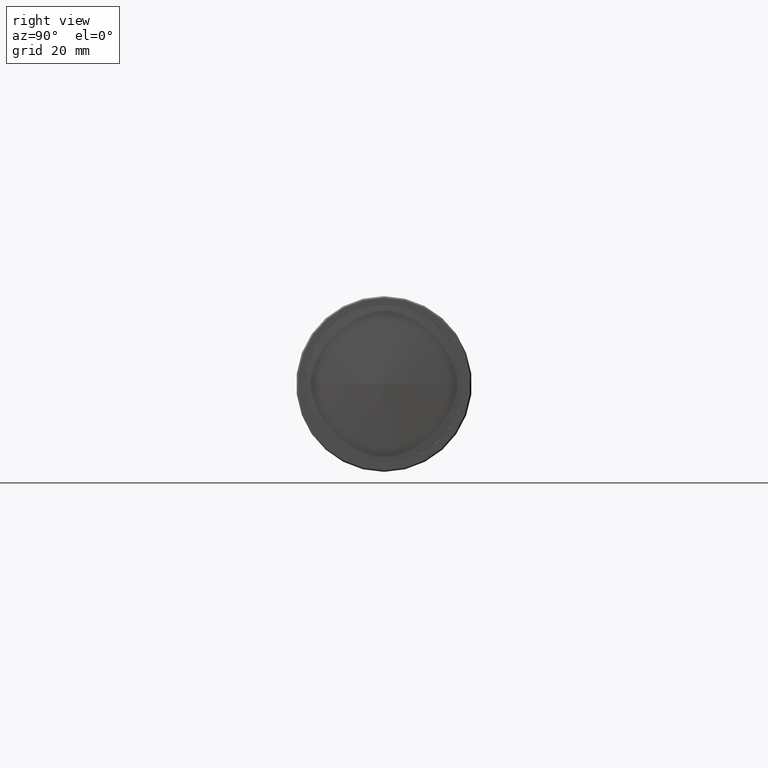
[diagram: clean part render]
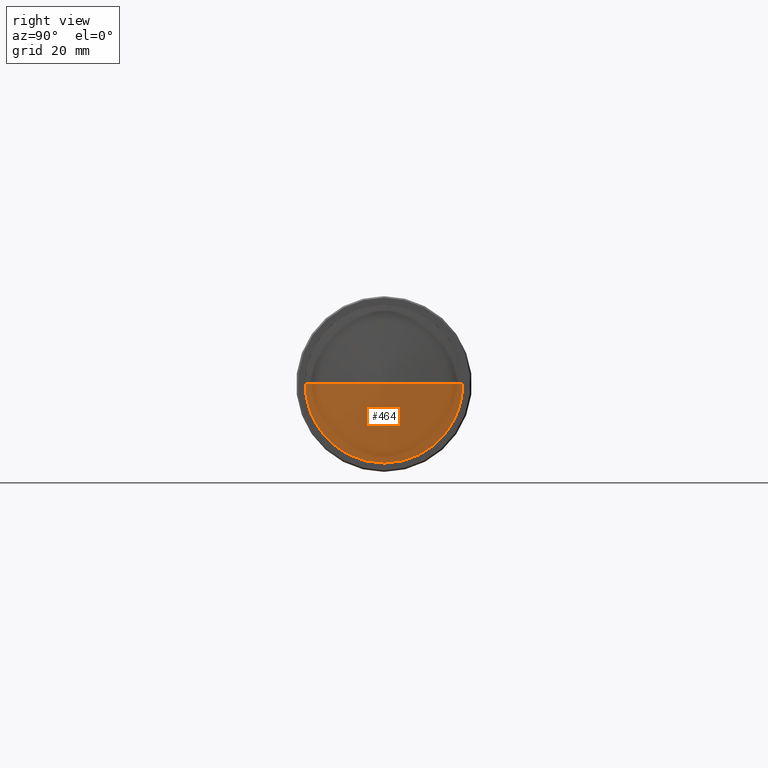
[diagram: same view with one face highlighted and labeled with its STEP entity id]
A machine part, right view. The second image highlights one B-rep face of the part: STEP entity #464.
In plain terms, the highlighted conical surface has half-angle 87.146 deg.
Its self-contained STEP definition (entity closure, byte-faithful):
#59 = EDGE_CURVE ( 'NONE', #1434, #1359, #251, .T. ) ;
#171 = CONICAL_SURFACE ( 'NONE', #325, 20062.49999928364600, 1.520993307079872200 ) ;
#189 = FACE_OUTER_BOUND ( 'NONE', #1364, .T. ) ;
#210 = VECTOR ( 'NONE', #946, 999.9999999999998900 ) ;
#211 = LINE ( 'NONE', #962, #210 ) ;
#228 = CIRCLE ( 'NONE', #343, 15.75000000000000000 ) ;
#237 = VECTOR ( 'NONE', #809, 1000.000000000000000 ) ;
#240 = LINE ( 'NONE', #807, #237 ) ;
#251 = CIRCLE ( 'NONE', #364, 15.75000000000000000 ) ;
#324 = EDGE_CURVE ( 'NONE', #1432, #1434, #240, .T. ) ;
#325 = AXIS2_PLACEMENT_3D ( 'NONE', #845, #583, #787 ) ;
#343 = AXIS2_PLACEMENT_3D ( 'NONE', #850, #837, #842 ) ;
#364 = AXIS2_PLACEMENT_3D ( 'NONE', #590, #591, #592 ) ;
#375 = EDGE_CURVE ( 'NONE', #1359, #1424, #228, .T. ) ;
#426 = EDGE_CURVE ( 'NONE', #1432, #1424, #211, .T. ) ;
#464 = ADVANCED_FACE ( 'NONE', ( #189 ), #171, .T. ) ;
#583 = DIRECTION ( 'NONE',  ( -1.000000000000000000, -1.101411730778925000E-016, -0.0000000000000000000 ) ) ;
#590 = CARTESIAN_POINT ( 'NONE',  ( 31.18760616000004800, 0.0000000000000000000, 0.0000000000000000000 ) ) ;
#591 = DIRECTION ( 'NONE',  ( -1.000000000000000000, 0.0000000000000000000, 0.0000000000000000000 ) ) ;
#592 = DIRECTION ( 'NONE',  ( -2.863670500025205400E-015, 0.0000000000000000000, 1.000000000000000000 ) ) ;
#652 = CARTESIAN_POINT ( 'NONE',  ( 31.97265288899999500, -5.553580772755923100E-024, 0.0000000000000000000 ) ) ;
#656 = CARTESIAN_POINT ( 'NONE',  ( 31.18760616000004800, -15.74999999999912200, 0.0000000000000000000 ) ) ;
#659 = CARTESIAN_POINT ( 'NONE',  ( 31.18760616000004800, 15.74999999999905300, 1.928818708656965400E-015 ) ) ;
#671 = CARTESIAN_POINT ( 'NONE',  ( 31.18760616000004800, 1.928818708657081300E-015, -15.75000000000000000 ) ) ;
#787 = DIRECTION ( 'NONE',  ( 1.106764385958677400E-016, -1.000000000000000000, 0.0000000000000000000 ) ) ;
#807 = CARTESIAN_POINT ( 'NONE',  ( 31.97265288899999500, 0.0000000000000000000, 0.0000000000000000000 ) ) ;
#809 = DIRECTION ( 'NONE',  ( -0.04978243419141193500, 0.9987600859295378000, 1.223128342349744000E-016 ) ) ;
#837 = DIRECTION ( 'NONE',  ( -1.000000000000000000, 0.0000000000000000000, 0.0000000000000000000 ) ) ;
#842 = DIRECTION ( 'NONE',  ( -2.863670500025205400E-015, 0.0000000000000000000, 1.000000000000000000 ) ) ;
#845 = CARTESIAN_POINT ( 'NONE',  ( -968.0273471110000400, -1.101411730778925000E-013, 0.0000000000000000000 ) ) ;
#850 = CARTESIAN_POINT ( 'NONE',  ( 31.18760616000004800, 0.0000000000000000000, 0.0000000000000000000 ) ) ;
#946 = DIRECTION ( 'NONE',  ( -0.04978243419141171300, -0.9987600859295379100, 0.0000000000000000000 ) ) ;
#962 = CARTESIAN_POINT ( 'NONE',  ( 31.97265288899999500, 0.0000000000000000000, 0.0000000000000000000 ) ) ;
#1281 = ORIENTED_EDGE ( 'NONE', *, *, #375, .F. ) ;
#1284 = ORIENTED_EDGE ( 'NONE', *, *, #324, .F. ) ;
#1286 = ORIENTED_EDGE ( 'NONE', *, *, #426, .T. ) ;
#1359 = VERTEX_POINT ( 'NONE', #671 ) ;
#1364 = EDGE_LOOP ( 'NONE', ( #1284, #1286, #1281, #1485 ) ) ;
#1424 = VERTEX_POINT ( 'NONE', #656 ) ;
#1432 = VERTEX_POINT ( 'NONE', #652 ) ;
#1434 = VERTEX_POINT ( 'NONE', #659 ) ;
#1485 = ORIENTED_EDGE ( 'NONE', *, *, #59, .F. ) ;